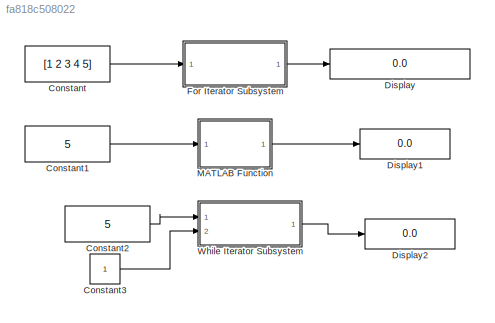
MODEL slx_fa818c508022
KIND model
CONFIG AbsTol = auto
CONFIG EnableMultiTasking = off
CONFIG FixedStep = auto
CONFIG MaxStep = auto
CONFIG MinStep = auto
CONFIG RelTol = 1e-3
CONFIG SampleTimeConstraint = Unconstrained
CONFIG SolverName = VariableStepAuto
CONFIG StartTime = 0.0
CONFIG StopTime = 10.0
BLOCK [Constant] Constant
  Value = [1 2 3 4 5]
BLOCK [Constant] Constant1
  Value = 5
BLOCK [Constant] Constant2
  Value = 5
BLOCK [Constant] Constant3
BLOCK [Display] Display
  Decimation = 1
  Ports = [1]
BLOCK [Display] Display1
  Decimation = 1
  Ports = [1]
BLOCK [Display] Display2
  Decimation = 1
  Ports = [1]
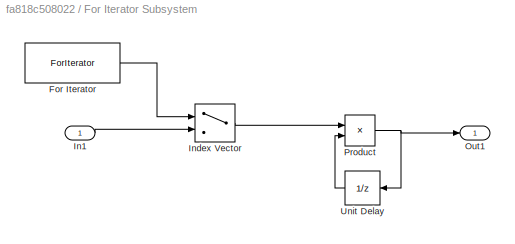
BLOCK [SubSystem] For Iterator Subsystem
  Ports = [1, 1]
  RequestExecContextInheritance = off
  TreatAsAtomicUnit = on
BLOCK [ForIterator] For Iterator Subsystem/For Iterator
  IndexMode = Zero-based
  Ports = [0, 1]
  ResetStates = reset
BLOCK [Inport] For Iterator Subsystem/In1
BLOCK [MultiPortSwitch] For Iterator Subsystem/Index Vector
  DataPortOrder = Zero-based contiguous
  InputSameDT = off
  Inputs = 1
  Ports = [2, 1]
  SaturateOnIntegerOverflow = off
  zeroidx = on
BLOCK [Outport] For Iterator Subsystem/Out1
BLOCK [Product] For Iterator Subsystem/Product
  Ports = [2, 1]
BLOCK [UnitDelay] For Iterator Subsystem/Unit Delay
  HasFrameUpgradeWarning = on
  InitialCondition = 1
  NameLocation = top
  SampleTime = -1
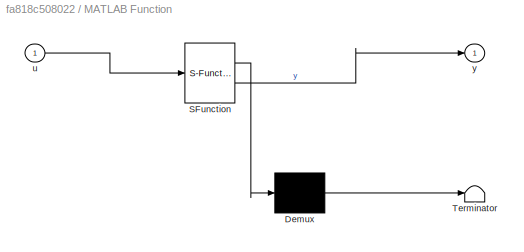
BLOCK [SubSystem] MATLAB Function
  ErrorFcn = Stateflow.Translate.translate
  PermitHierarchicalResolution = ExplicitOnly
  Ports = [1, 1]
  RequestExecContextInheritance = off
  SFBlockType = MATLAB Function
  TreatAsAtomicUnit = on
BLOCK [Demux] MATLAB Function/ Demux 
  Outputs = 1
  Ports = [1, 1]
BLOCK [S-Function] MATLAB Function/ SFunction 
  EnableBusSupport = on
  FunctionName = sf_sfun
  PortCounts = [1 2]
  Ports = [1, 2]
  SFcnIsStateOwnerBlock = off
  SFunctionDeploymentMode = off
  Tag = Stateflow S-Function 2
BLOCK [Terminator] MATLAB Function/ Terminator 
BLOCK [Inport] MATLAB Function/u
BLOCK [Outport] MATLAB Function/y
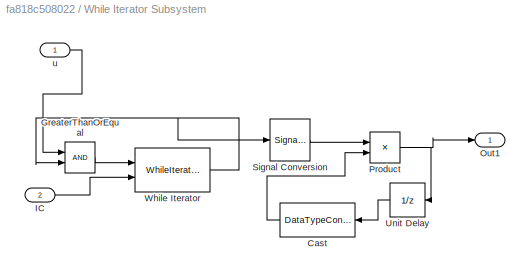
BLOCK [SubSystem] While Iterator Subsystem
  Ports = [2, 1]
  RequestExecContextInheritance = off
  TreatAsAtomicUnit = on
BLOCK [DataTypeConversion] While Iterator Subsystem/Cast
  NameLocation = top
  OutDataTypeStr = int32
  RndMeth = Floor
  SaturateOnIntegerOverflow = off
BLOCK [RelationalOperator] While Iterator Subsystem/GreaterThanOrEqual
  InputSameDT = off
  OutDataTypeStr = boolean
  Ports = [2, 1]
  RndMeth = Simplest
BLOCK [Inport] While Iterator Subsystem/IC
  Port = 2
BLOCK [Outport] While Iterator Subsystem/Out1
BLOCK [Product] While Iterator Subsystem/Product
  Ports = [2, 1]
BLOCK [SignalConversion] While Iterator Subsystem/Signal Conversion
  OverrideOpt = off
BLOCK [UnitDelay] While Iterator Subsystem/Unit Delay
  HasFrameUpgradeWarning = on
  InitialCondition = 1
  NameLocation = top
  SampleTime = -1
BLOCK [WhileIterator] While Iterator Subsystem/While Iterator
  Ports = [2, 1]
  ResetStates = reset
  ShowIterationPort = on
BLOCK [Inport] While Iterator Subsystem/u
LINE Constant1:1 -> MATLAB Function:1
LINE Constant2:1 -> While Iterator Subsystem:1
LINE Constant3:1 -> While Iterator Subsystem:2
LINE Constant:1 -> For Iterator Subsystem:1
LINE For Iterator Subsystem/For Iterator:1 -> For Iterator Subsystem/Index Vector:1
LINE For Iterator Subsystem/In1:1 -> For Iterator Subsystem/Index Vector:2
LINE For Iterator Subsystem/Index Vector:1 -> For Iterator Subsystem/Product:1
NET For Iterator Subsystem/Product:1 -> For Iterator Subsystem/Out1:1, For Iterator Subsystem/Unit Delay:1
LINE For Iterator Subsystem/Unit Delay:1 -> For Iterator Subsystem/Product:2
LINE For Iterator Subsystem:1 -> Display:1
LINE MATLAB Function:1 -> Display1:1
LINE While Iterator Subsystem/Cast:1 -> While Iterator Subsystem/Product:2
LINE While Iterator Subsystem/GreaterThanOrEqual:1 -> While Iterator Subsystem/While Iterator:1
LINE While Iterator Subsystem/IC:1 -> While Iterator Subsystem/While Iterator:2
NET While Iterator Subsystem/Product:1 -> While Iterator Subsystem/Out1:1, While Iterator Subsystem/Unit Delay:1
LINE While Iterator Subsystem/Signal Conversion:1 -> While Iterator Subsystem/Product:1
LINE While Iterator Subsystem/Unit Delay:1 -> While Iterator Subsystem/Cast:1
NET While Iterator Subsystem/While Iterator:1 -> While Iterator Subsystem/GreaterThanOrEqual:2, While Iterator Subsystem/Signal Conversion:1
LINE While Iterator Subsystem/u:1 -> While Iterator Subsystem/GreaterThanOrEqual:1
LINE While Iterator Subsystem:1 -> Display2:1
note: NET lines group one-source signal fan-out (src -> all destinations, sorted); 1:1 wires keep LINE
CHART MATLAB Function states=1 transitions=1
  STATE_LABEL 'eML_blk_kernel()'
  STATE_LABEL 'SCRIPT:\nfunction y = fcn(u)\n\n    if u > 0\n        y = factorial(u);\n    else\n        y = 0;\n    end\n'
CHART  states=0 transitions=0
